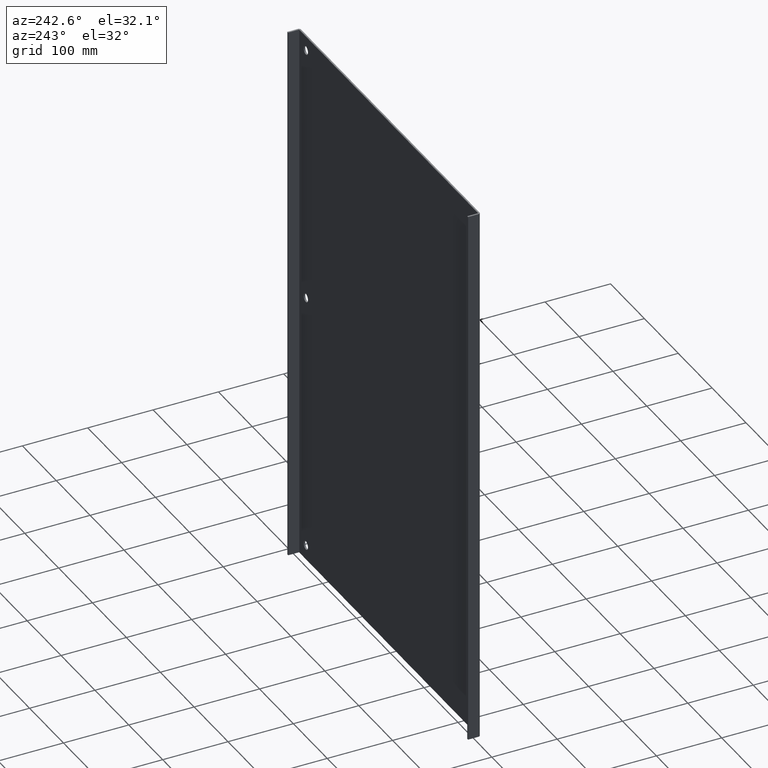
[diagram: clean part render]
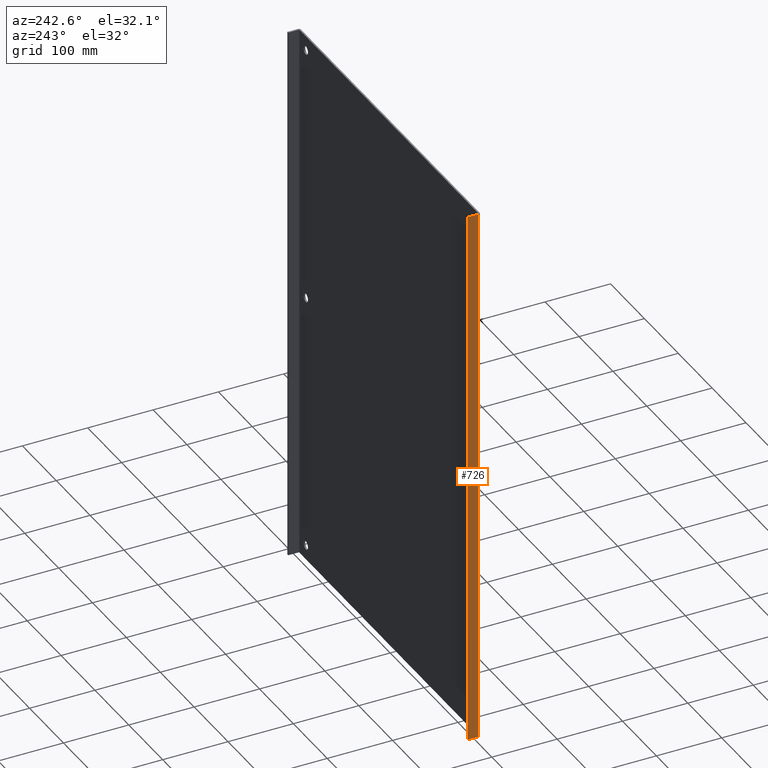
[diagram: same view with one face highlighted and labeled with its STEP entity id]
A machine part, auxiliary view. The second image highlights one B-rep face of the part: STEP entity #726.
In plain terms, the highlighted planar face has unit normal (1, -0, 0).
Its self-contained STEP definition (entity closure, byte-faithful):
#4 = ORIENTED_EDGE ( 'NONE', *, *, #1036, .T. ) ;
#75 = DIRECTION ( 'NONE',  ( -0.0000000000000000000, -1.000000000000000000, 0.0000000000000000000 ) ) ;
#80 = VERTEX_POINT ( 'NONE', #967 ) ;
#85 = VECTOR ( 'NONE', #195, 39.37007874015748143 ) ;
#95 = CARTESIAN_POINT ( 'NONE',  ( -10.50000000000000000, 0.09499999999999998723, -16.50000000000000000 ) ) ;
#105 = VERTEX_POINT ( 'NONE', #584 ) ;
#134 = EDGE_LOOP ( 'NONE', ( #418, #4, #815, #312 ) ) ;
#163 = CARTESIAN_POINT ( 'NONE',  ( -10.50000000000000000, 0.1250000000000000000, 16.50000000000000000 ) ) ;
#167 = PLANE ( 'NONE',  #654 ) ;
#175 = VERTEX_POINT ( 'NONE', #669 ) ;
#195 = DIRECTION ( 'NONE',  ( 0.0000000000000000000, 1.000000000000000000, 0.0000000000000000000 ) ) ;
#296 = EDGE_CURVE ( 'NONE', #80, #175, #623, .T. ) ;
#306 = FACE_OUTER_BOUND ( 'NONE', #134, .T. ) ;
#312 = ORIENTED_EDGE ( 'NONE', *, *, #296, .F. ) ;
#318 = CARTESIAN_POINT ( 'NONE',  ( -10.50000000000000000, 0.09499999999999998723, 16.50000000000000000 ) ) ;
#396 = CARTESIAN_POINT ( 'NONE',  ( -10.50000000000000000, 0.7500000000000001110, 16.50000000000000000 ) ) ;
#418 = ORIENTED_EDGE ( 'NONE', *, *, #720, .F. ) ;
#495 = LINE ( 'NONE', #318, #959 ) ;
#584 = CARTESIAN_POINT ( 'NONE',  ( -10.50000000000000000, 0.7500000000000001110, -16.50000000000000000 ) ) ;
#617 = CARTESIAN_POINT ( 'NONE',  ( -10.50000000000000000, 0.7500000000000001110, 16.50000000000000000 ) ) ;
#623 = LINE ( 'NONE', #163, #827 ) ;
#636 = VERTEX_POINT ( 'NONE', #396 ) ;
#654 = AXIS2_PLACEMENT_3D ( 'NONE', #893, #966, #885 ) ;
#656 = LINE ( 'NONE', #617, #909 ) ;
#669 = CARTESIAN_POINT ( 'NONE',  ( -10.50000000000000000, 0.1250000000000000000, -16.50000000000000000 ) ) ;
#685 = DIRECTION ( 'NONE',  ( 0.0000000000000000000, 0.0000000000000000000, -1.000000000000000000 ) ) ;
#720 = EDGE_CURVE ( 'NONE', #636, #80, #495, .T. ) ;
#726 = ADVANCED_FACE ( 'NONE', ( #306 ), #167, .F. ) ;
#767 = DIRECTION ( 'NONE',  ( 0.0000000000000000000, -0.0000000000000000000, -1.000000000000000000 ) ) ;
#815 = ORIENTED_EDGE ( 'NONE', *, *, #1012, .F. ) ;
#827 = VECTOR ( 'NONE', #685, 39.37007874015748143 ) ;
#885 = DIRECTION ( 'NONE',  ( 6.123233995736769734E-17, 1.000000000000000000, 0.0000000000000000000 ) ) ;
#893 = CARTESIAN_POINT ( 'NONE',  ( -10.50000000000000000, 0.09379024048199331720, 16.50000000000000000 ) ) ;
#909 = VECTOR ( 'NONE', #767, 39.37007874015748143 ) ;
#959 = VECTOR ( 'NONE', #75, 39.37007874015748143 ) ;
#966 = DIRECTION ( 'NONE',  ( 1.000000000000000000, -6.123233995736769734E-17, 0.0000000000000000000 ) ) ;
#967 = CARTESIAN_POINT ( 'NONE',  ( -10.50000000000000000, 0.1250000000000000000, 16.50000000000000000 ) ) ;
#973 = LINE ( 'NONE', #95, #85 ) ;
#1012 = EDGE_CURVE ( 'NONE', #175, #105, #973, .T. ) ;
#1036 = EDGE_CURVE ( 'NONE', #636, #105, #656, .T. ) ;